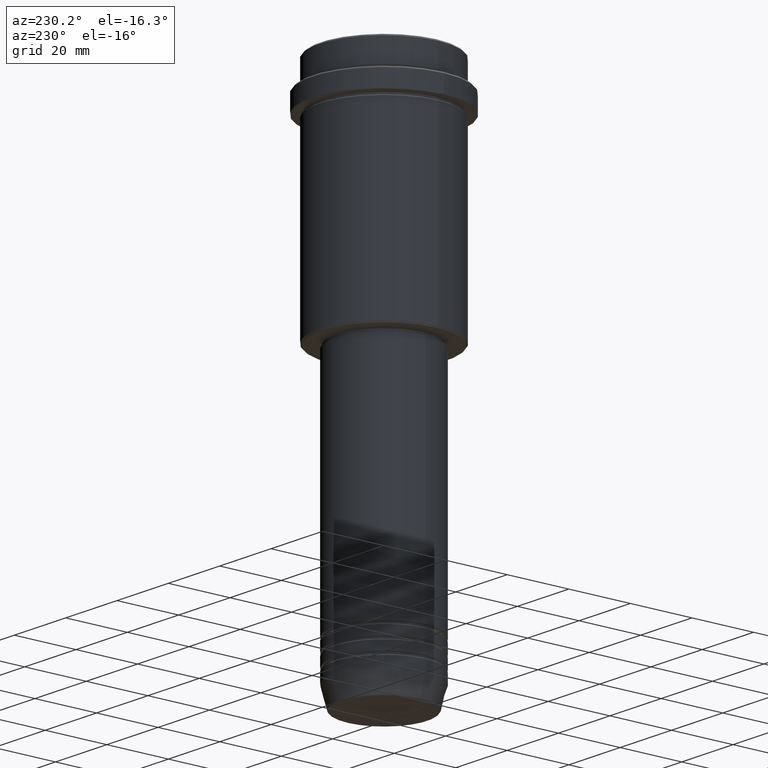
[diagram: clean part render]
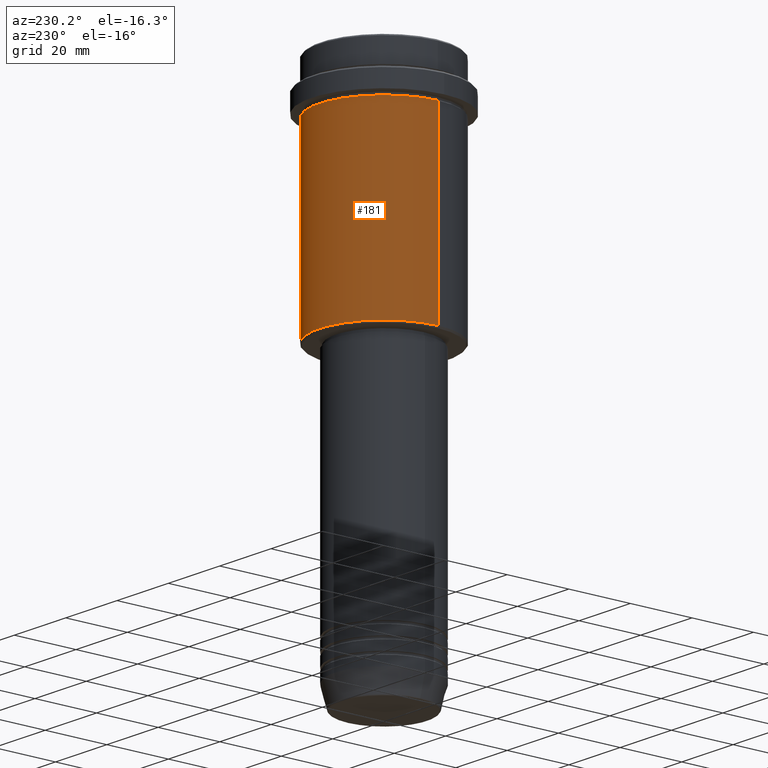
[diagram: same view with one face highlighted and labeled with its STEP entity id]
A machine part, auxiliary view. The second image highlights one B-rep face of the part: STEP entity #181.
In plain terms, the highlighted cylindrical surface (partial cylindrical patch) has radius 21 mm, axis along (-0, -0, 1).
Its self-contained STEP definition (entity closure, byte-faithful):
#21 = LINE ( 'NONE', #363, #520 ) ;
#45 = VERTEX_POINT ( 'NONE', #1031 ) ;
#46 = CARTESIAN_POINT ( 'NONE',  ( 0.000000000000000000, 0.000000000000000000, -16.00000000000000355 ) ) ;
#52 = AXIS2_PLACEMENT_3D ( 'NONE', #362, #1133, #921 ) ;
#63 = CARTESIAN_POINT ( 'NONE',  ( 21.00000000000000000, 0.000000000000000000, -74.50000000000002842 ) ) ;
#120 = AXIS2_PLACEMENT_3D ( 'NONE', #1086, #741, #428 ) ;
#179 = DIRECTION ( 'NONE',  ( -0.000000000000000000, -0.000000000000000000, 1.000000000000000000 ) ) ;
#181 = ADVANCED_FACE ( 'NONE', ( #1196 ), #846, .T. ) ;
#250 = EDGE_CURVE ( 'NONE', #446, #658, #21, .T. ) ;
#253 = LINE ( 'NONE', #922, #1296 ) ;
#260 = EDGE_CURVE ( 'NONE', #899, #45, #253, .T. ) ;
#353 = DIRECTION ( 'NONE',  ( -0.000000000000000000, -0.000000000000000000, 1.000000000000000000 ) ) ;
#362 = CARTESIAN_POINT ( 'NONE',  ( 0.000000000000000000, 0.000000000000000000, -74.50000000000002842 ) ) ;
#363 = CARTESIAN_POINT ( 'NONE',  ( -21.00000000000000000, 2.571758278209441661E-15, 0.000000000000000000 ) ) ;
#428 = DIRECTION ( 'NONE',  ( 1.000000000000000000, 0.000000000000000000, 0.000000000000000000 ) ) ;
#446 = VERTEX_POINT ( 'NONE', #509 ) ;
#454 = AXIS2_PLACEMENT_3D ( 'NONE', #46, #179, #1040 ) ;
#509 = CARTESIAN_POINT ( 'NONE',  ( -21.00000000000000000, 2.571758278209441661E-15, -74.50000000000002842 ) ) ;
#520 = VECTOR ( 'NONE', #1231, 1000.000000000000000 ) ;
#594 = CIRCLE ( 'NONE', #52, 21.00000000000000000 ) ;
#658 = VERTEX_POINT ( 'NONE', #1006 ) ;
#713 = EDGE_CURVE ( 'NONE', #899, #446, #594, .T. ) ;
#741 = DIRECTION ( 'NONE',  ( -0.000000000000000000, -0.000000000000000000, 1.000000000000000000 ) ) ;
#789 = EDGE_LOOP ( 'NONE', ( #1233, #1004, #1410, #1120 ) ) ;
#804 = EDGE_CURVE ( 'NONE', #45, #658, #955, .T. ) ;
#846 = CYLINDRICAL_SURFACE ( 'NONE', #120, 21.00000000000000000 ) ;
#899 = VERTEX_POINT ( 'NONE', #63 ) ;
#921 = DIRECTION ( 'NONE',  ( -1.000000000000000000, 0.000000000000000000, 0.000000000000000000 ) ) ;
#922 = CARTESIAN_POINT ( 'NONE',  ( 21.00000000000000000, 0.000000000000000000, 0.000000000000000000 ) ) ;
#955 = CIRCLE ( 'NONE', #454, 21.00000000000000000 ) ;
#1004 = ORIENTED_EDGE ( 'NONE', *, *, #250, .T. ) ;
#1006 = CARTESIAN_POINT ( 'NONE',  ( -21.00000000000000000, 2.571758278209441661E-15, -16.00000000000000355 ) ) ;
#1031 = CARTESIAN_POINT ( 'NONE',  ( 21.00000000000000000, 0.000000000000000000, -16.00000000000000355 ) ) ;
#1040 = DIRECTION ( 'NONE',  ( 1.000000000000000000, 0.000000000000000000, 0.000000000000000000 ) ) ;
#1086 = CARTESIAN_POINT ( 'NONE',  ( 0.000000000000000000, 0.000000000000000000, 0.000000000000000000 ) ) ;
#1120 = ORIENTED_EDGE ( 'NONE', *, *, #260, .F. ) ;
#1133 = DIRECTION ( 'NONE',  ( -0.000000000000000000, -0.000000000000000000, 1.000000000000000000 ) ) ;
#1196 = FACE_OUTER_BOUND ( 'NONE', #789, .T. ) ;
#1231 = DIRECTION ( 'NONE',  ( -0.000000000000000000, -0.000000000000000000, 1.000000000000000000 ) ) ;
#1233 = ORIENTED_EDGE ( 'NONE', *, *, #713, .T. ) ;
#1296 = VECTOR ( 'NONE', #353, 1000.000000000000000 ) ;
#1410 = ORIENTED_EDGE ( 'NONE', *, *, #804, .F. ) ;